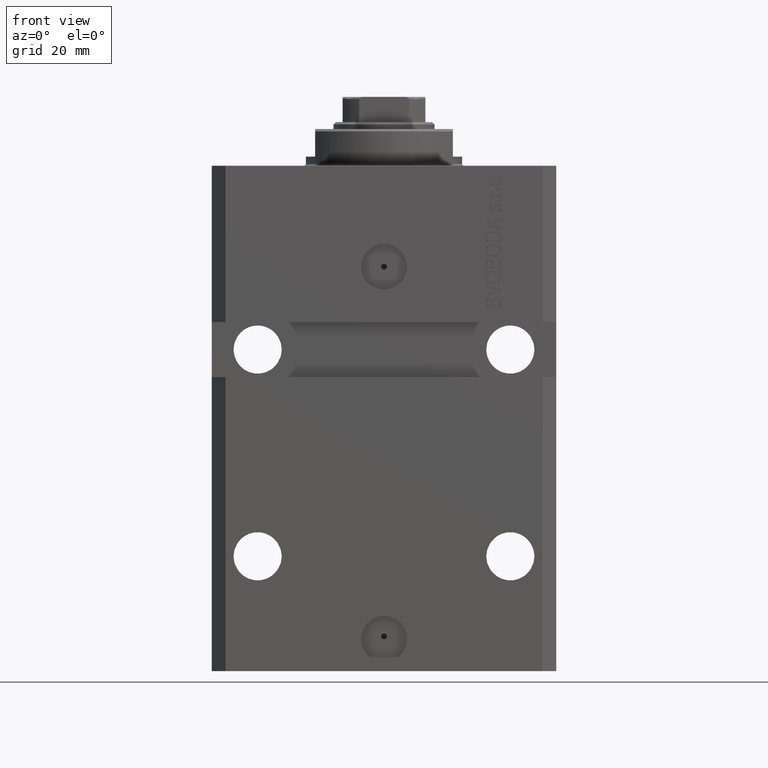
[diagram: clean part render]
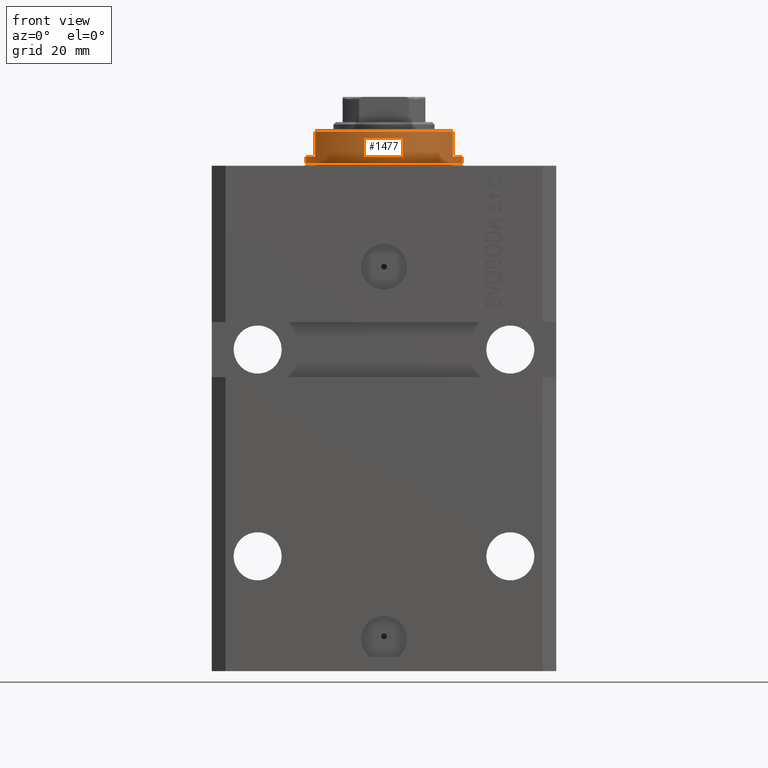
[diagram: same view with one face highlighted and labeled with its STEP entity id]
A machine part, front view. The second image highlights one B-rep face of the part: STEP entity #1477.
In plain terms, the highlighted cylindrical surface (partial cylindrical patch) has radius 17 mm, axis along (0, 0, -1).
Its self-contained STEP definition (entity closure, byte-faithful):
#367 = VERTEX_POINT ( 'NONE', #16405 ) ;
#969 = CARTESIAN_POINT ( 'NONE',  ( 14.99999999999999645, -8.000000000000003553, -2.000000000000000000 ) ) ;
#1148 = DIRECTION ( 'NONE',  ( -0.000000000000000000, -0.000000000000000000, 1.000000000000000000 ) ) ;
#1260 = VERTEX_POINT ( 'NONE', #45307 ) ;
#1477 = ADVANCED_FACE ( 'NONE', ( #19407 ), #26804, .T. ) ;
#2323 = DIRECTION ( 'NONE',  ( -1.000000000000000000, 0.000000000000000000, 0.000000000000000000 ) ) ;
#3643 = VERTEX_POINT ( 'NONE', #7434 ) ;
#3828 = DIRECTION ( 'NONE',  ( 0.000000000000000000, 0.000000000000000000, 1.000000000000000000 ) ) ;
#4026 = DIRECTION ( 'NONE',  ( -1.000000000000000000, 0.000000000000000000, 0.000000000000000000 ) ) ;
#4632 = VERTEX_POINT ( 'NONE', #44042 ) ;
#5297 = EDGE_CURVE ( 'NONE', #4632, #24757, #11844, .T. ) ;
#6755 = CARTESIAN_POINT ( 'NONE',  ( -15.00000000000000000, -8.000000000000001776, -8.000000000000000000 ) ) ;
#6950 = CARTESIAN_POINT ( 'NONE',  ( 15.00000000000000000, -8.000000000000001776, -7.500000000000007105 ) ) ;
#7036 = DIRECTION ( 'NONE',  ( 0.000000000000000000, 0.000000000000000000, -1.000000000000000000 ) ) ;
#7434 = CARTESIAN_POINT ( 'NONE',  ( -17.00000000000000000, 2.081899558550500280E-15, -0.5000000000000004441 ) ) ;
#7703 = DIRECTION ( 'NONE',  ( 1.000000000000000000, 0.000000000000000000, 0.000000000000000000 ) ) ;
#8168 = CARTESIAN_POINT ( 'NONE',  ( 0.000000000000000000, 0.000000000000000000, -8.000000000000000000 ) ) ;
#8479 = VECTOR ( 'NONE', #1148, 1000.000000000000000 ) ;
#9642 = ORIENTED_EDGE ( 'NONE', *, *, #46765, .T. ) ;
#10408 = VERTEX_POINT ( 'NONE', #969 ) ;
#11185 = EDGE_CURVE ( 'NONE', #4632, #10408, #38037, .T. ) ;
#11529 = DIRECTION ( 'NONE',  ( -0.000000000000000000, -0.000000000000000000, 1.000000000000000000 ) ) ;
#11844 = LINE ( 'NONE', #26405, #30201 ) ;
#13894 = ORIENTED_EDGE ( 'NONE', *, *, #11185, .F. ) ;
#14870 = ORIENTED_EDGE ( 'NONE', *, *, #5297, .T. ) ;
#16405 = CARTESIAN_POINT ( 'NONE',  ( -15.00000000000000000, -8.000000000000001776, -7.500000000000007105 ) ) ;
#16830 = AXIS2_PLACEMENT_3D ( 'NONE', #30246, #22128, #19019 ) ;
#17996 = LINE ( 'NONE', #6755, #39970 ) ;
#18847 = EDGE_LOOP ( 'NONE', ( #34261, #19199, #9642, #42257, #37391, #13894, #14870, #21957 ) ) ;
#19019 = DIRECTION ( 'NONE',  ( 1.000000000000000000, 0.000000000000000000, 0.000000000000000000 ) ) ;
#19101 = CARTESIAN_POINT ( 'NONE',  ( -17.00000000000000000, 2.081899558550500280E-15, -8.000000000000000000 ) ) ;
#19199 = ORIENTED_EDGE ( 'NONE', *, *, #21882, .F. ) ;
#19312 = EDGE_CURVE ( 'NONE', #24757, #3643, #35902, .T. ) ;
#19350 = CARTESIAN_POINT ( 'NONE',  ( -14.99999999999999645, -8.000000000000003553, -2.000000000000000000 ) ) ;
#19407 = FACE_OUTER_BOUND ( 'NONE', #18847, .T. ) ;
#19812 = LINE ( 'NONE', #19101, #8479 ) ;
#19838 = DIRECTION ( 'NONE',  ( -1.000000000000000000, 0.000000000000000000, 0.000000000000000000 ) ) ;
#21882 = EDGE_CURVE ( 'NONE', #22600, #1260, #45938, .T. ) ;
#21957 = ORIENTED_EDGE ( 'NONE', *, *, #19312, .T. ) ;
#22128 = DIRECTION ( 'NONE',  ( -0.000000000000000000, -0.000000000000000000, -1.000000000000000000 ) ) ;
#22600 = VERTEX_POINT ( 'NONE', #19350 ) ;
#23296 = AXIS2_PLACEMENT_3D ( 'NONE', #33002, #3828, #19838 ) ;
#24757 = VERTEX_POINT ( 'NONE', #31891 ) ;
#25286 = AXIS2_PLACEMENT_3D ( 'NONE', #44228, #29387, #4026 ) ;
#26405 = CARTESIAN_POINT ( 'NONE',  ( 17.00000000000000000, 0.000000000000000000, -8.000000000000000000 ) ) ;
#26804 = CYLINDRICAL_SURFACE ( 'NONE', #46162, 17.00000000000000000 ) ;
#28122 = AXIS2_PLACEMENT_3D ( 'NONE', #42066, #45894, #2323 ) ;
#28982 = DIRECTION ( 'NONE',  ( 0.000000000000000000, 0.000000000000000000, -1.000000000000000000 ) ) ;
#29387 = DIRECTION ( 'NONE',  ( 0.000000000000000000, 0.000000000000000000, -1.000000000000000000 ) ) ;
#30201 = VECTOR ( 'NONE', #41024, 1000.000000000000000 ) ;
#30246 = CARTESIAN_POINT ( 'NONE',  ( 0.000000000000000000, 0.000000000000000000, -0.5000000000000004441 ) ) ;
#31326 = VERTEX_POINT ( 'NONE', #6950 ) ;
#31891 = CARTESIAN_POINT ( 'NONE',  ( 17.00000000000000000, 0.000000000000000000, -0.5000000000000004441 ) ) ;
#33002 = CARTESIAN_POINT ( 'NONE',  ( 0.000000000000000000, 0.000000000000000000, -7.500000000000007105 ) ) ;
#33541 = CARTESIAN_POINT ( 'NONE',  ( 15.00000000000000000, -8.000000000000001776, -8.000000000000000000 ) ) ;
#34238 = EDGE_CURVE ( 'NONE', #367, #31326, #40128, .T. ) ;
#34261 = ORIENTED_EDGE ( 'NONE', *, *, #38073, .F. ) ;
#35902 = CIRCLE ( 'NONE', #16830, 17.00000000000000000 ) ;
#36545 = EDGE_CURVE ( 'NONE', #10408, #31326, #39815, .T. ) ;
#37391 = ORIENTED_EDGE ( 'NONE', *, *, #36545, .F. ) ;
#38037 = CIRCLE ( 'NONE', #28122, 17.00000000000000000 ) ;
#38073 = EDGE_CURVE ( 'NONE', #1260, #3643, #19812, .T. ) ;
#39815 = LINE ( 'NONE', #33541, #41273 ) ;
#39970 = VECTOR ( 'NONE', #28982, 1000.000000000000000 ) ;
#40128 = CIRCLE ( 'NONE', #23296, 17.00000000000000000 ) ;
#41024 = DIRECTION ( 'NONE',  ( -0.000000000000000000, -0.000000000000000000, 1.000000000000000000 ) ) ;
#41273 = VECTOR ( 'NONE', #7036, 1000.000000000000000 ) ;
#42066 = CARTESIAN_POINT ( 'NONE',  ( 0.000000000000000000, 0.000000000000000000, -2.000000000000000000 ) ) ;
#42257 = ORIENTED_EDGE ( 'NONE', *, *, #34238, .T. ) ;
#44042 = CARTESIAN_POINT ( 'NONE',  ( 17.00000000000000000, 0.000000000000000000, -2.000000000000000000 ) ) ;
#44228 = CARTESIAN_POINT ( 'NONE',  ( 0.000000000000000000, 0.000000000000000000, -2.000000000000000000 ) ) ;
#45307 = CARTESIAN_POINT ( 'NONE',  ( -17.00000000000000000, 2.081899558550500280E-15, -2.000000000000000000 ) ) ;
#45894 = DIRECTION ( 'NONE',  ( 0.000000000000000000, 0.000000000000000000, -1.000000000000000000 ) ) ;
#45938 = CIRCLE ( 'NONE', #25286, 17.00000000000000000 ) ;
#46162 = AXIS2_PLACEMENT_3D ( 'NONE', #8168, #11529, #7703 ) ;
#46765 = EDGE_CURVE ( 'NONE', #22600, #367, #17996, .T. ) ;